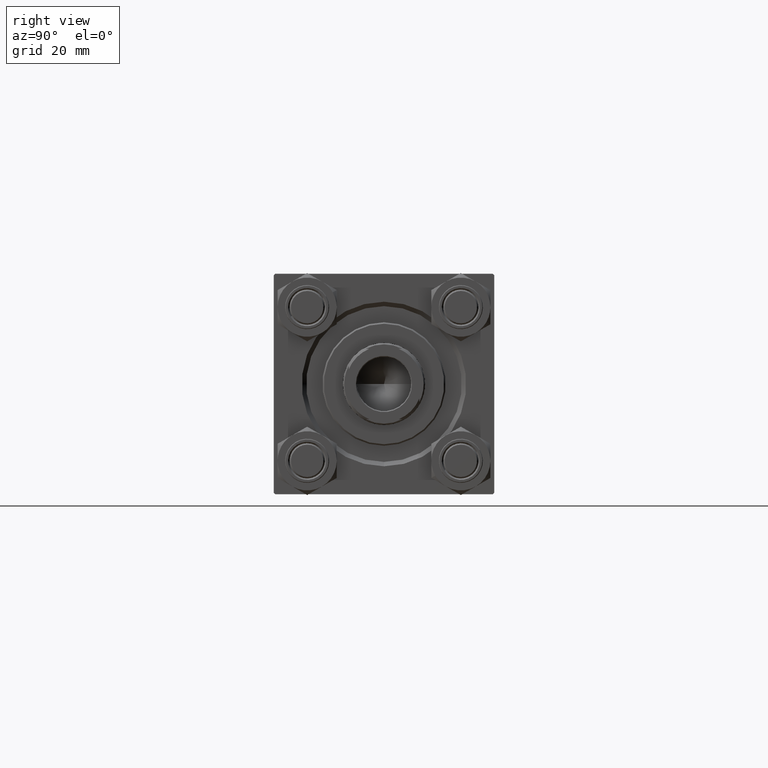
[diagram: clean part render]
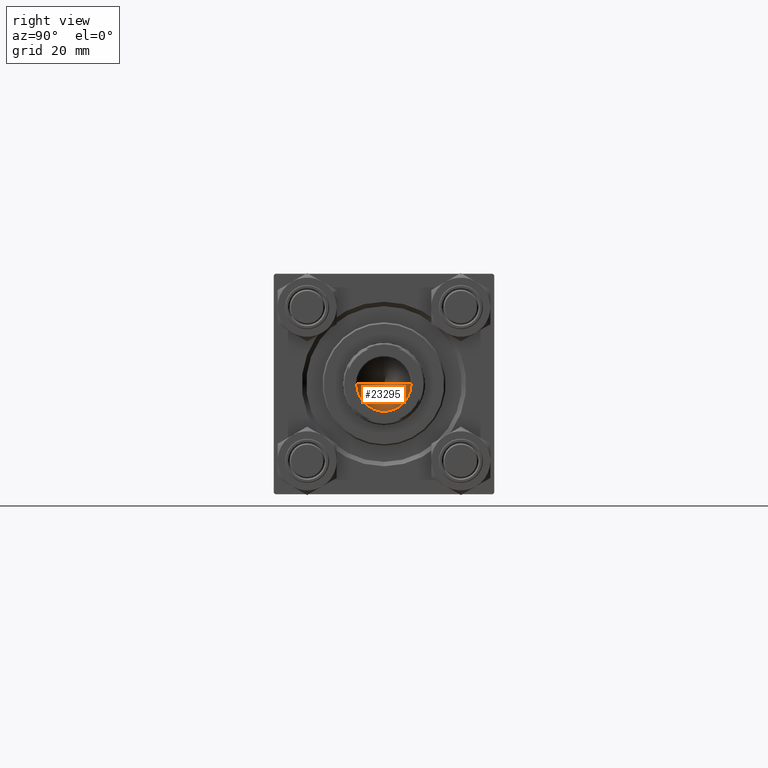
[diagram: same view with one face highlighted and labeled with its STEP entity id]
A machine part, right view. The second image highlights one B-rep face of the part: STEP entity #23295.
In plain terms, the highlighted conical surface has half-angle 59 deg.
Its self-contained STEP definition (entity closure, byte-faithful):
#1267 = ORIENTED_EDGE ( 'NONE', *, *, #42833, .T. ) ;
#2193 = VERTEX_POINT ( 'NONE', #7062 ) ;
#4433 = FACE_OUTER_BOUND ( 'NONE', #41509, .T. ) ;
#4490 = DIRECTION ( 'NONE',  ( 1.000000000000000000, 0.000000000000000000, 0.000000000000000000 ) ) ;
#5191 = ORIENTED_EDGE ( 'NONE', *, *, #10732, .T. ) ;
#5561 = AXIS2_PLACEMENT_3D ( 'NONE', #26872, #45747, #4490 ) ;
#7062 = CARTESIAN_POINT ( 'NONE',  ( -9.769621978240258809E-15, 0.000000000000000000, 101.4420392739950785 ) ) ;
#8141 = VECTOR ( 'NONE', #31922, 1000.000000000000000 ) ;
#9976 = CONICAL_SURFACE ( 'NONE', #16413, 9.249999999999992895, 1.029744258676653423 ) ;
#10008 = VECTOR ( 'NONE', #32329, 1000.000000000000000 ) ;
#10732 = EDGE_CURVE ( 'NONE', #2193, #38811, #21088, .T. ) ;
#13206 = CARTESIAN_POINT ( 'NONE',  ( 0.000000000000000000, 0.000000000000000000, 107.0000000000000142 ) ) ;
#13544 = CARTESIAN_POINT ( 'NONE',  ( 9.249999999999992895, 0.000000000000000000, 107.0000000000000142 ) ) ;
#16026 = CIRCLE ( 'NONE', #5561, 9.249999999999992895 ) ;
#16413 = AXIS2_PLACEMENT_3D ( 'NONE', #13206, #28550, #39872 ) ;
#16755 = LINE ( 'NONE', #31832, #10008 ) ;
#21088 = LINE ( 'NONE', #13544, #8141 ) ;
#23218 = CARTESIAN_POINT ( 'NONE',  ( 9.249999999999992895, 0.000000000000000000, 107.0000000000000142 ) ) ;
#23295 = ADVANCED_FACE ( 'NONE', ( #4433 ), #9976, .F. ) ;
#24151 = EDGE_CURVE ( 'NONE', #2193, #48587, #16755, .T. ) ;
#26872 = CARTESIAN_POINT ( 'NONE',  ( 0.000000000000000000, 0.000000000000000000, 107.0000000000000142 ) ) ;
#28550 = DIRECTION ( 'NONE',  ( -0.000000000000000000, -0.000000000000000000, 1.000000000000000000 ) ) ;
#31832 = CARTESIAN_POINT ( 'NONE',  ( -9.249999999999992895, 1.132798289211300712E-15, 107.0000000000000142 ) ) ;
#31922 = DIRECTION ( 'NONE',  ( 0.8571673007021117785, 0.000000000000000000, 0.5150380749100550437 ) ) ;
#32329 = DIRECTION ( 'NONE',  ( -0.8571673007021117785, 1.049727191138617956E-16, 0.5150380749100550437 ) ) ;
#38811 = VERTEX_POINT ( 'NONE', #23218 ) ;
#39872 = DIRECTION ( 'NONE',  ( 1.000000000000000000, 0.000000000000000000, 0.000000000000000000 ) ) ;
#41509 = EDGE_LOOP ( 'NONE', ( #43684, #5191, #1267 ) ) ;
#42833 = EDGE_CURVE ( 'NONE', #38811, #48587, #16026, .T. ) ;
#43684 = ORIENTED_EDGE ( 'NONE', *, *, #24151, .F. ) ;
#45747 = DIRECTION ( 'NONE',  ( -0.000000000000000000, -0.000000000000000000, 1.000000000000000000 ) ) ;
#46780 = CARTESIAN_POINT ( 'NONE',  ( -9.249999999999992895, 1.132798289211300712E-15, 107.0000000000000142 ) ) ;
#48587 = VERTEX_POINT ( 'NONE', #46780 ) ;